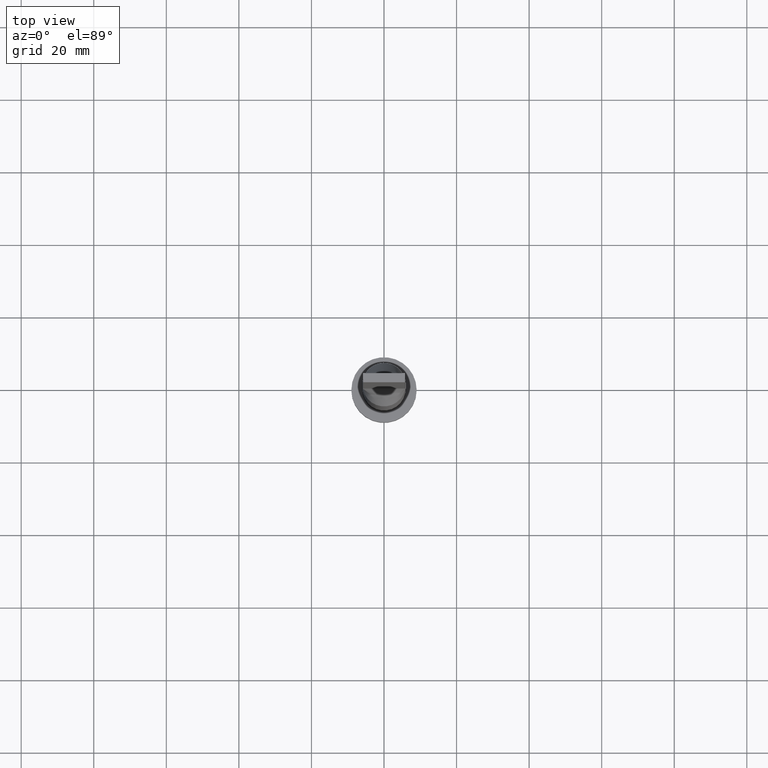
[diagram: clean part render]
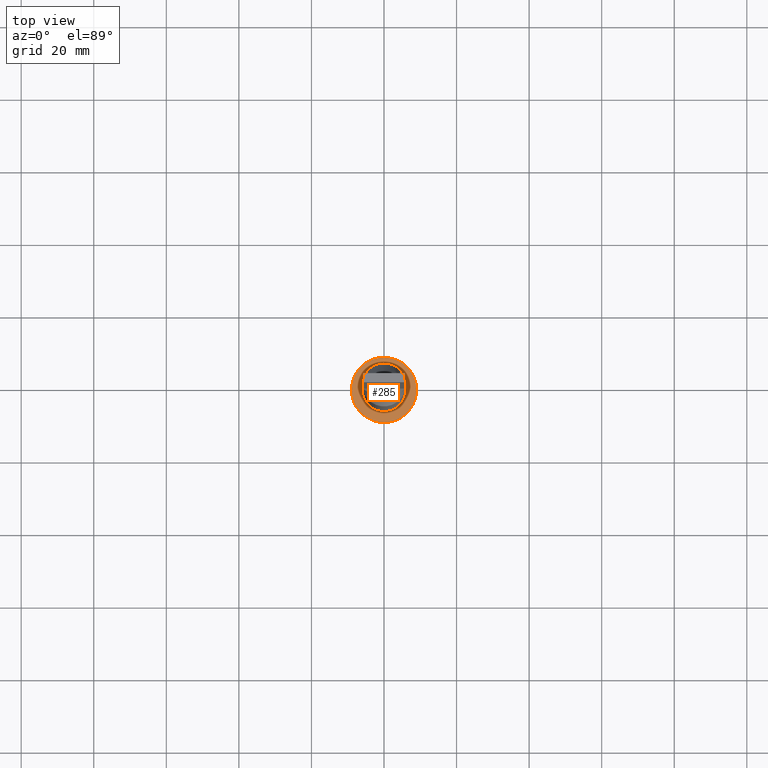
[diagram: same view with one face highlighted and labeled with its STEP entity id]
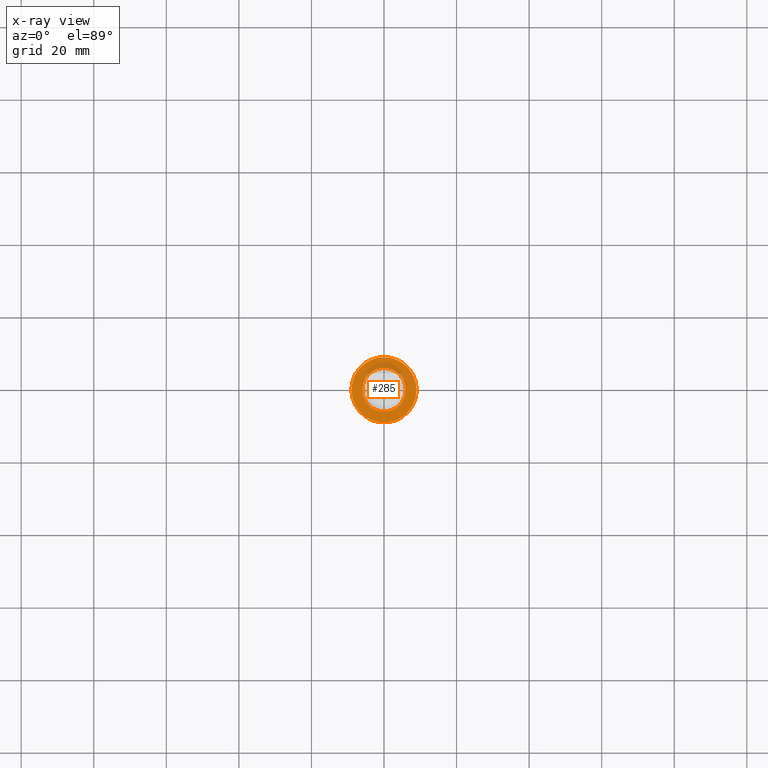
[diagram: x-ray of the same camera — body ghosted, the highlighted face saturated]
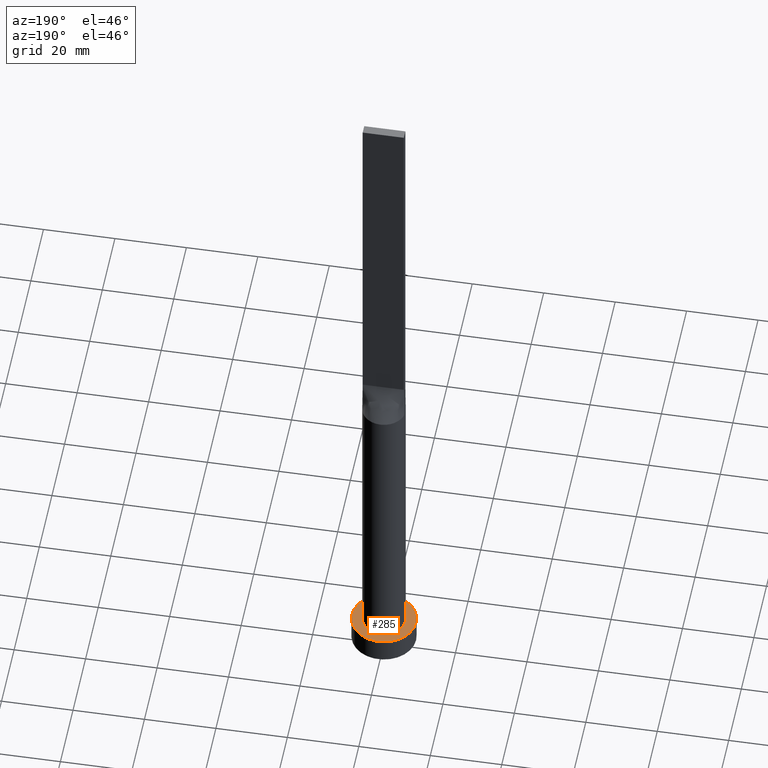
[diagram: same view with one face highlighted and labeled with its STEP entity id]
A machine part, top view. The second image highlights one B-rep face of the part: STEP entity #285.
The next image is the same camera in x-ray: the body ghosted, the highlighted face saturated — about 13% of this face is hidden behind the body in this view.
A second angle (auxiliary view) of the same face is appended — the face is thin or edge-on in the first view.
In plain terms, the highlighted planar face has unit normal (0, 0, 1).
Its self-contained STEP definition (entity closure, byte-faithful):
#31 = CARTESIAN_POINT ( 'NONE',  ( -6.000000000000000888, 0.000000000000000000, 7.000000000000000000 ) ) ;
#39 = DIRECTION ( 'NONE',  ( 0.000000000000000000, 0.000000000000000000, 1.000000000000000000 ) ) ;
#49 = ORIENTED_EDGE ( 'NONE', *, *, #343, .T. ) ;
#57 = VERTEX_POINT ( 'NONE', #31 ) ;
#66 = VERTEX_POINT ( 'NONE', #118 ) ;
#100 = EDGE_CURVE ( 'NONE', #166, #66, #394, .T. ) ;
#107 = PLANE ( 'NONE',  #290 ) ;
#118 = CARTESIAN_POINT ( 'NONE',  ( 9.000000000000000000, 1.102182119232617714E-15, 7.000000000000000000 ) ) ;
#124 = DIRECTION ( 'NONE',  ( 0.000000000000000000, 0.000000000000000000, 1.000000000000000000 ) ) ;
#166 = VERTEX_POINT ( 'NONE', #361 ) ;
#186 = CARTESIAN_POINT ( 'NONE',  ( 6.000000000000000888, 7.347880794884120722E-16, 7.000000000000000000 ) ) ;
#191 = CIRCLE ( 'NONE', #532, 6.000000000000000888 ) ;
#247 = AXIS2_PLACEMENT_3D ( 'NONE', #529, #485, #301 ) ;
#249 = AXIS2_PLACEMENT_3D ( 'NONE', #295, #489, #583 ) ;
#253 = VERTEX_POINT ( 'NONE', #186 ) ;
#262 = DIRECTION ( 'NONE',  ( 1.000000000000000000, 0.000000000000000000, 0.000000000000000000 ) ) ;
#276 = ORIENTED_EDGE ( 'NONE', *, *, #440, .F. ) ;
#283 = DIRECTION ( 'NONE',  ( 0.000000000000000000, 0.000000000000000000, 1.000000000000000000 ) ) ;
#285 = ADVANCED_FACE ( 'NONE', ( #422, #515 ), #107, .T. ) ;
#290 = AXIS2_PLACEMENT_3D ( 'NONE', #465, #283, #426 ) ;
#295 = CARTESIAN_POINT ( 'NONE',  ( 0.000000000000000000, 0.000000000000000000, 7.000000000000000000 ) ) ;
#301 = DIRECTION ( 'NONE',  ( 1.000000000000000000, 0.000000000000000000, 0.000000000000000000 ) ) ;
#309 = DIRECTION ( 'NONE',  ( 1.000000000000000000, 0.000000000000000000, 0.000000000000000000 ) ) ;
#316 = AXIS2_PLACEMENT_3D ( 'NONE', #546, #39, #309 ) ;
#337 = ORIENTED_EDGE ( 'NONE', *, *, #100, .T. ) ;
#343 = EDGE_CURVE ( 'NONE', #66, #166, #454, .T. ) ;
#361 = CARTESIAN_POINT ( 'NONE',  ( -9.000000000000000000, 0.000000000000000000, 7.000000000000000000 ) ) ;
#394 = CIRCLE ( 'NONE', #247, 9.000000000000000000 ) ;
#422 = FACE_BOUND ( 'NONE', #562, .T. ) ;
#424 = CIRCLE ( 'NONE', #316, 6.000000000000000888 ) ;
#426 = DIRECTION ( 'NONE',  ( 1.000000000000000000, 0.000000000000000000, -0.000000000000000000 ) ) ;
#440 = EDGE_CURVE ( 'NONE', #253, #57, #424, .T. ) ;
#449 = CARTESIAN_POINT ( 'NONE',  ( 0.000000000000000000, 0.000000000000000000, 7.000000000000000000 ) ) ;
#454 = CIRCLE ( 'NONE', #249, 9.000000000000000000 ) ;
#465 = CARTESIAN_POINT ( 'NONE',  ( 0.000000000000000000, 0.000000000000000000, 7.000000000000000000 ) ) ;
#481 = ORIENTED_EDGE ( 'NONE', *, *, #493, .F. ) ;
#485 = DIRECTION ( 'NONE',  ( 0.000000000000000000, 0.000000000000000000, 1.000000000000000000 ) ) ;
#489 = DIRECTION ( 'NONE',  ( 0.000000000000000000, 0.000000000000000000, 1.000000000000000000 ) ) ;
#493 = EDGE_CURVE ( 'NONE', #57, #253, #191, .T. ) ;
#515 = FACE_OUTER_BOUND ( 'NONE', #525, .T. ) ;
#525 = EDGE_LOOP ( 'NONE', ( #337, #49 ) ) ;
#529 = CARTESIAN_POINT ( 'NONE',  ( 0.000000000000000000, 0.000000000000000000, 7.000000000000000000 ) ) ;
#532 = AXIS2_PLACEMENT_3D ( 'NONE', #449, #124, #262 ) ;
#546 = CARTESIAN_POINT ( 'NONE',  ( 0.000000000000000000, 0.000000000000000000, 7.000000000000000000 ) ) ;
#562 = EDGE_LOOP ( 'NONE', ( #481, #276 ) ) ;
#583 = DIRECTION ( 'NONE',  ( 1.000000000000000000, 0.000000000000000000, 0.000000000000000000 ) ) ;